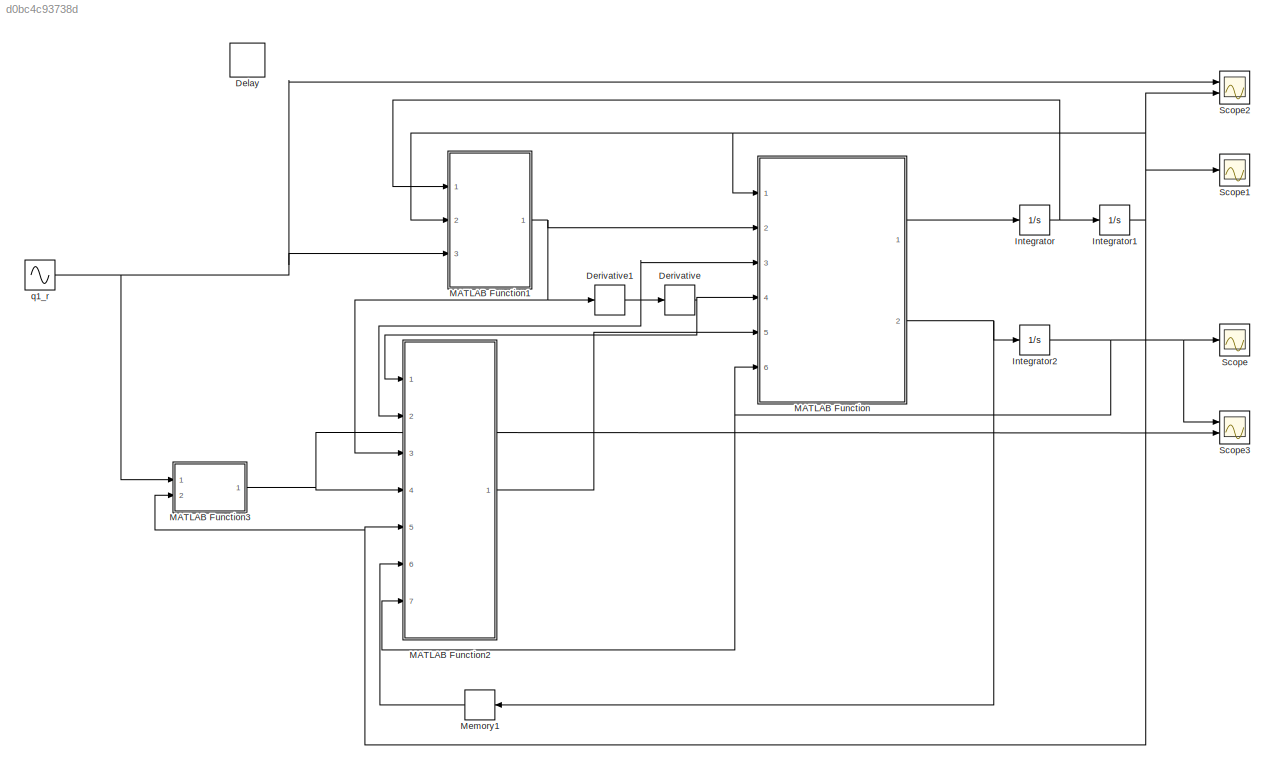
MODEL slx_d0bc4c93738d
KIND model
CONFIG AbsTol = auto
CONFIG EnableMultiTasking = off
CONFIG FixedStep = 0.001
CONFIG MaxStep = auto
CONFIG MinStep = auto
CONFIG RelTol = 1e-3
CONFIG SampleTimeConstraint = Unconstrained
CONFIG Solver = FixedStepAuto
CONFIG SolverName = FixedStepAuto
CONFIG StartTime = 0.0
CONFIG StopTime = 10
BLOCK [Delay] Delay
  DelayLength = 1
  InitialCondition = 0
  InputPortMap = u0
  Ports = [1, 1]
BLOCK [Derivative] Derivative
BLOCK [Derivative] Derivative1
BLOCK [Integrator] Integrator
  Ports = [1, 1]
BLOCK [Integrator] Integrator1
  Ports = [1, 1]
BLOCK [Integrator] Integrator2
  Ports = [1, 1]
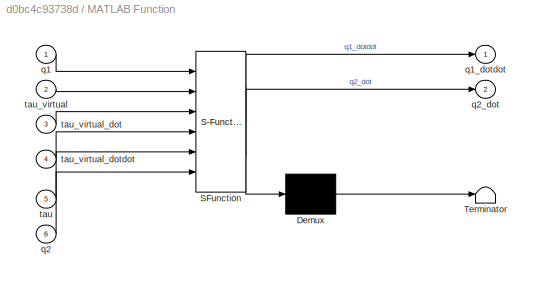
BLOCK [SubSystem] MATLAB Function
  ErrorFcn = Stateflow.Translate.translate
  PermitHierarchicalResolution = ExplicitOnly
  Ports = [6, 2]
  RequestExecContextInheritance = off
  SFBlockType = MATLAB Function
  TreatAsAtomicUnit = on
BLOCK [Demux] MATLAB Function/ Demux 
  Outputs = 1
  Ports = [1, 1]
BLOCK [S-Function] MATLAB Function/ SFunction 
  EnableBusSupport = on
  FunctionName = sf_sfun
  PortCounts = [6 3]
  Ports = [6, 3]
  SFcnIsStateOwnerBlock = off
  SFunctionDeploymentMode = off
  Tag = Stateflow S-Function Motor 2
BLOCK [Terminator] MATLAB Function/ Terminator 
BLOCK [Inport] MATLAB Function/q1
  IconDisplay = Port number
BLOCK [Outport] MATLAB Function/q1_dotdot
  IconDisplay = Port number
BLOCK [Inport] MATLAB Function/q2
  IconDisplay = Port number
  Port = 6
BLOCK [Outport] MATLAB Function/q2_dot
  IconDisplay = Port number
  Port = 2
BLOCK [Inport] MATLAB Function/tau
  IconDisplay = Port number
  Port = 5
BLOCK [Inport] MATLAB Function/tau_virtual
  IconDisplay = Port number
  Port = 2
BLOCK [Inport] MATLAB Function/tau_virtual_dot
  IconDisplay = Port number
  Port = 3
BLOCK [Inport] MATLAB Function/tau_virtual_dotdot
  IconDisplay = Port number
  Port = 4
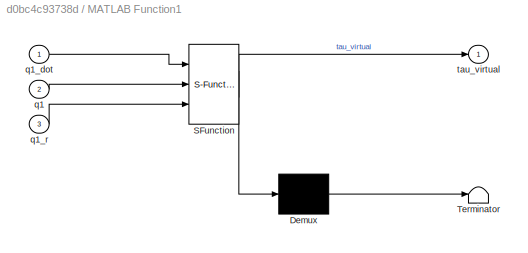
BLOCK [SubSystem] MATLAB Function1
  ErrorFcn = Stateflow.Translate.translate
  PermitHierarchicalResolution = ExplicitOnly
  Ports = [3, 1]
  RequestExecContextInheritance = off
  SFBlockType = MATLAB Function
  TreatAsAtomicUnit = on
BLOCK [Demux] MATLAB Function1/ Demux 
  Outputs = 1
  Ports = [1, 1]
BLOCK [S-Function] MATLAB Function1/ SFunction 
  EnableBusSupport = on
  FunctionName = sf_sfun
  PortCounts = [3 2]
  Ports = [3, 2]
  SFcnIsStateOwnerBlock = off
  SFunctionDeploymentMode = off
  Tag = Stateflow S-Function Motor 1
BLOCK [Terminator] MATLAB Function1/ Terminator 
BLOCK [Inport] MATLAB Function1/q1
  IconDisplay = Port number
  Port = 2
BLOCK [Inport] MATLAB Function1/q1_dot
  IconDisplay = Port number
BLOCK [Inport] MATLAB Function1/q1_r
  IconDisplay = Port number
  Port = 3
BLOCK [Outport] MATLAB Function1/tau_virtual
  IconDisplay = Port number
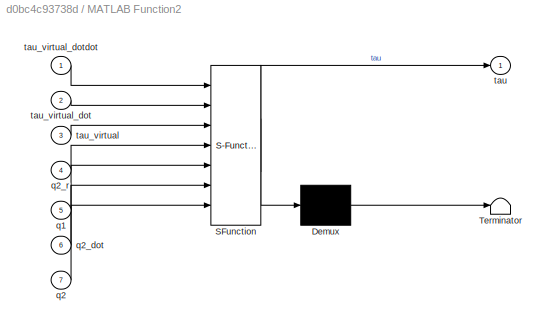
BLOCK [SubSystem] MATLAB Function2
  ErrorFcn = Stateflow.Translate.translate
  PermitHierarchicalResolution = ExplicitOnly
  Ports = [7, 1]
  RequestExecContextInheritance = off
  SFBlockType = MATLAB Function
  TreatAsAtomicUnit = on
BLOCK [Demux] MATLAB Function2/ Demux 
  Outputs = 1
  Ports = [1, 1]
BLOCK [S-Function] MATLAB Function2/ SFunction 
  EnableBusSupport = on
  FunctionName = sf_sfun
  PortCounts = [7 2]
  Ports = [7, 2]
  SFcnIsStateOwnerBlock = off
  SFunctionDeploymentMode = off
  Tag = Stateflow S-Function Motor 3
BLOCK [Terminator] MATLAB Function2/ Terminator 
BLOCK [Inport] MATLAB Function2/q1
  IconDisplay = Port number
  Port = 5
BLOCK [Inport] MATLAB Function2/q2
  IconDisplay = Port number
  Port = 7
BLOCK [Inport] MATLAB Function2/q2_dot
  IconDisplay = Port number
  Port = 6
BLOCK [Inport] MATLAB Function2/q2_r
  IconDisplay = Port number
  Port = 4
BLOCK [Outport] MATLAB Function2/tau
  IconDisplay = Port number
BLOCK [Inport] MATLAB Function2/tau_virtual
  IconDisplay = Port number
  Port = 3
BLOCK [Inport] MATLAB Function2/tau_virtual_dot
  IconDisplay = Port number
  Port = 2
BLOCK [Inport] MATLAB Function2/tau_virtual_dotdot
  IconDisplay = Port number
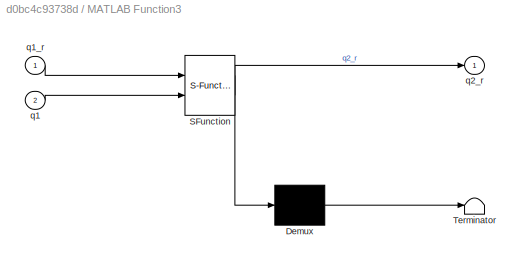
BLOCK [SubSystem] MATLAB Function3
  ErrorFcn = Stateflow.Translate.translate
  PermitHierarchicalResolution = ExplicitOnly
  Ports = [2, 1]
  RequestExecContextInheritance = off
  SFBlockType = MATLAB Function
  TreatAsAtomicUnit = on
BLOCK [Demux] MATLAB Function3/ Demux 
  Outputs = 1
  Ports = [1, 1]
BLOCK [S-Function] MATLAB Function3/ SFunction 
  EnableBusSupport = on
  FunctionName = sf_sfun
  PortCounts = [2 2]
  Ports = [2, 2]
  SFcnIsStateOwnerBlock = off
  SFunctionDeploymentMode = off
  Tag = Stateflow S-Function Motor 4
BLOCK [Terminator] MATLAB Function3/ Terminator 
BLOCK [Inport] MATLAB Function3/q1
  IconDisplay = Port number
  Port = 2
BLOCK [Inport] MATLAB Function3/q1_r
  IconDisplay = Port number
BLOCK [Outport] MATLAB Function3/q2_r
  IconDisplay = Port number
BLOCK [Memory] Memory1
BLOCK [Scope] Scope
  Floating = off
  NumInputPorts = 1
  Ports = [1]
  ScopeSpecificationString = Simulink.scopes.TimeScopeBlockCfg('CurrentConfiguration', extmgr.ConfigurationSet(extmgr.Configuration('Core','General UI',true),extmgr.Configuration('Core','Source UI',true),extmgr.Configuration('Sources','WiredSimulink',true),extmgr.Configuration('Visuals','Time Domain',true,'SerializedDisplays',{struct('MinYLimReal','-0.000009','MaxYLimReal','0.000025','YLabelReal','','MinYLimMag','0.000000','M...<+1364ch>
BLOCK [Scope] Scope1
  Floating = off
  NumInputPorts = 1
  Ports = [1]
  ScopeSpecificationString = Simulink.scopes.TimeScopeBlockCfg('CurrentConfiguration', extmgr.ConfigurationSet(extmgr.Configuration('Core','General UI',true),extmgr.Configuration('Core','Source UI',true),extmgr.Configuration('Sources','WiredSimulink',true,'DataLoggingVariableName','ScopeData1'),extmgr.Configuration('Visuals','Time Domain',true,'SerializedDisplays',{struct('MinYLimReal','-0.0000000000013','MaxYLimReal','0.0000...<+1459ch>
BLOCK [Scope] Scope2
  Floating = off
  NumInputPorts = 2
  Ports = [2]
  ScopeSpecificationString = Simulink.scopes.TimeScopeBlockCfg('CurrentConfiguration', extmgr.ConfigurationSet(extmgr.Configuration('Core','General UI',true),extmgr.Configuration('Core','Source UI',true),extmgr.Configuration('Sources','WiredSimulink',true,'DataLoggingVariableName','ScopeData2'),extmgr.Configuration('Visuals','Time Domain',true,'SerializedDisplays',{struct('MinYLimReal','-0.00029','MaxYLimReal','0.00114','YLab...<+1402ch>
BLOCK [Scope] Scope3
  Floating = off
  NumInputPorts = 2
  Ports = [2]
  ScopeSpecificationString = Simulink.scopes.TimeScopeBlockCfg('CurrentConfiguration', extmgr.ConfigurationSet(extmgr.Configuration('Core','General UI',true),extmgr.Configuration('Core','Source UI',true),extmgr.Configuration('Sources','WiredSimulink',true,'DataLoggingVariableName','ScopeData3'),extmgr.Configuration('Visuals','Time Domain',true,'SerializedDisplays',{struct('MinYLimReal','-0.00032','MaxYLimReal','0.00281','YLab...<+1414ch>
BLOCK [Sin] q1_r
  Ports = [0, 1]
  SampleTime = 0
NET Derivative1:1 -> Derivative:1, MATLAB Function2:2, MATLAB Function:3
NET Derivative:1 -> MATLAB Function2:1, MATLAB Function:4
NET Integrator1:1 -> MATLAB Function1:2, MATLAB Function2:5, MATLAB Function3:2, MATLAB Function:1, Scope1:1, Scope2:2
NET Integrator2:1 -> MATLAB Function2:7, MATLAB Function:6, Scope3:1, Scope:1
NET Integrator:1 -> Integrator1:1, MATLAB Function1:1
NET MATLAB Function1:1 -> Derivative1:1, MATLAB Function2:3, MATLAB Function:2
LINE MATLAB Function2:1 -> MATLAB Function:5
NET MATLAB Function3:1 -> MATLAB Function2:4, Scope3:2
LINE MATLAB Function:1 -> Integrator:1
NET MATLAB Function:2 -> Integrator2:1, Memory1:1
LINE Memory1:1 -> MATLAB Function2:6
NET q1_r:1 -> MATLAB Function1:3, MATLAB Function3:1, Scope2:1
note: NET lines group one-source signal fan-out (src -> all destinations, sorted); 1:1 wires keep LINE
CHART MATLAB Function1 states=1 transitions=1
  STATE_LABEL 'eML_blk_kernel()'
  STATE_LABEL 'SCRIPT:\nfunction tau_virtual = fcn(q1_dot,q1,q1_r)\n\nT = 10;\nJ = 0.0101;\nM = 0.0320;\nK = 4000;\n\nbeta1 = 2; beta2 = 2;\nalpha1 = 10; alpha2 = 10;\nKp1 = 100; Kd1 =20;\n\nrol1 = norm((-T - K*q1 + M*q1_dot));\ne1 = q1_r - q1;\ntau_virtual = e1 + (1/K)*((-alpha1*rol1^2-beta1)*(q1+q1_dot) + (-Kp1*q1-Kd1*q1_dot));\n'
CHART MATLAB Function states=1 transitions=1
  STATE_LABEL 'eML_blk_kernel()'
  STATE_LABEL 'SCRIPT:\nfunction [q1_dotdot,q2_dot] = fcn(q1,tau_virtual,tau_virtual_dot,tau_virtual_dotdot,tau,q2)\n\nT = 10;\nJ = 0.0101;\nM = 0.0320;\nK = 4000;\n\nbeta1 = 2; beta2 = 2;\nalpha1 = 10; alpha2 = 10;\nKp1 = 100; Kd1 =20;\n\n\n\nq1_dotdot = (- T - K*q1 + K*(q2 - tau_virtual) + K*tau_virtual)/M;\nq2_dot = (-J*tau_virtual_dotdot + K*q1 - K*(q2 - tau_virtual) - K*tau_virtual + tau)/J + tau_virtual_dot; '
CHART MATLAB Function2 states=1 transitions=1
  STATE_LABEL 'eML_blk_kernel()'
  STATE_LABEL 'SCRIPT:\nfunction tau = fcn(tau_virtual_dotdot,tau_virtual_dot,tau_virtual,q2_r,q1,q2_dot,q2)\n\nT = 10;\nJ = 0.0101;\nM = 0.0320;\nK = 4000;\n\nbeta1 = 2; beta2 = 2;\nalpha1 = 10; alpha2 = 10;\nKp1 = 100; Kd1 =20;\n\nrol2 = norm((-J*tau_virtual_dotdot - K*(q2-tau_virtual) + K*q1 - K*tau_virtual + J*(q2_dot-tau_virtual_dot)));\ne2 = q2_r - q2;\ntau = e2 + (-alpha2*rol2^2- beta2)*(q2_dot-tau_virtual_dot + q2-tau...<+11ch>'
CHART MATLAB Function3 states=1 transitions=1
  STATE_LABEL 'eML_blk_kernel()'
  STATE_LABEL 'SCRIPT:\nfunction q2_r = fcn(q1_r,q1)\n\nT = 10;\nJ = 0.0101;\nM = 0.0320;\nK = 4000;\n\nbeta1 = 2; beta2 = 2;\nalpha1 = 10; alpha2 = 10;\nKp1 = 100; Kd1 =20;\n\nq2_r = (-M*q1_r + T + K*q1)/K;\n'
